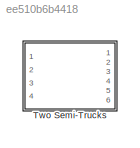
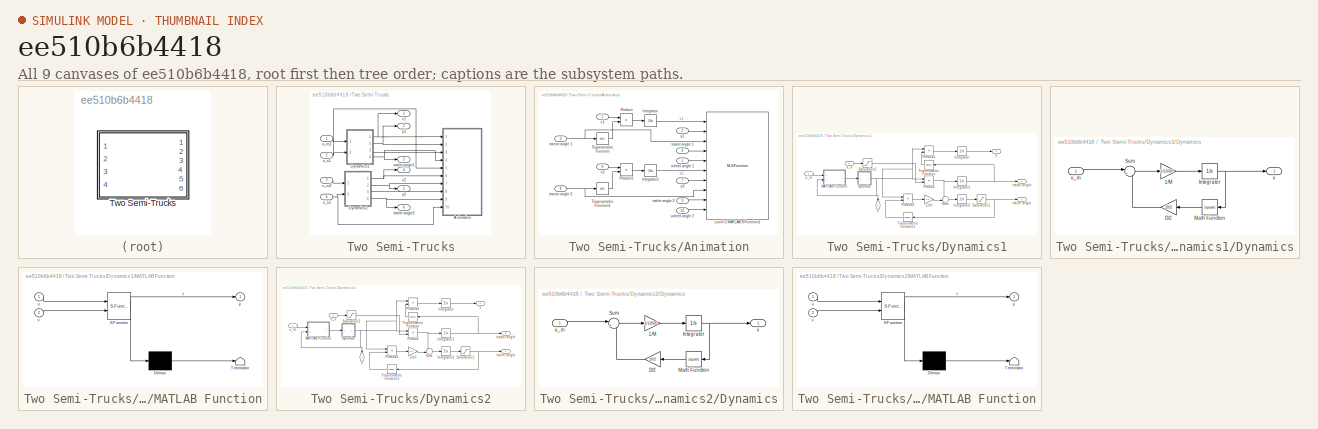
[diagram: thumbnail index - all 9 canvases of the model, root first then tree order]
MODEL slx_ee510b6b4418
KIND model
CONFIG AbsTol = auto
CONFIG EnableMultiTasking = off
CONFIG FixedStep = auto
CONFIG MaxStep = 0.01
CONFIG MinStep = auto
CONFIG RelTol = 1e-3
CONFIG SampleTimeConstraint = Unconstrained
CONFIG SolverName = VariableStepAuto
CONFIG StartTime = 0.0
CONFIG StopTime = 100
BLOCK [SubSystem] Two Semi-Trucks
  Ports = [4, 6]
BLOCK [SubSystem] Two Semi-Trucks/Animation
  Ports = [10]
BLOCK [Integrator] Two Semi-Trucks/Animation/Integrator
  Ports = [1, 1]
BLOCK [Integrator] Two Semi-Trucks/Animation/Integrator1
  Ports = [1, 1]
BLOCK [M-S-Function] Two Semi-Trucks/Animation/Level-2 MATLAB S-Function1
  FunctionName = semiTruckDoubleSFunction
  Ports = [10]
BLOCK [Product] Two Semi-Trucks/Animation/Product
  Ports = [2, 1]
BLOCK [Product] Two Semi-Trucks/Animation/Product1
  Ports = [2, 1]
BLOCK [Trigonometry] Two Semi-Trucks/Animation/Trigonometric Function
  Operator = cos
  Ports = [1, 1]
BLOCK [Trigonometry] Two Semi-Trucks/Animation/Trigonometric Function1
  Operator = cos
  Ports = [1, 1]
BLOCK [Inport] Two Semi-Trucks/Animation/tractor angle 1
  Port = 3
BLOCK [Inport] Two Semi-Trucks/Animation/tractor angle 2
  Port = 8
BLOCK [Inport] Two Semi-Trucks/Animation/trailer angle 1
  Port = 4
BLOCK [Inport] Two Semi-Trucks/Animation/trailer angle 2
  Port = 9
BLOCK [Inport] Two Semi-Trucks/Animation/v1
BLOCK [Inport] Two Semi-Trucks/Animation/v2
  Port = 6
BLOCK [Inport] Two Semi-Trucks/Animation/wheel angle 1
  Port = 5
BLOCK [Inport] Two Semi-Trucks/Animation/wheel angle 2
  Port = 10
BLOCK [Inport] Two Semi-Trucks/Animation/y1
  Port = 2
BLOCK [Inport] Two Semi-Trucks/Animation/y2
  Port = 7
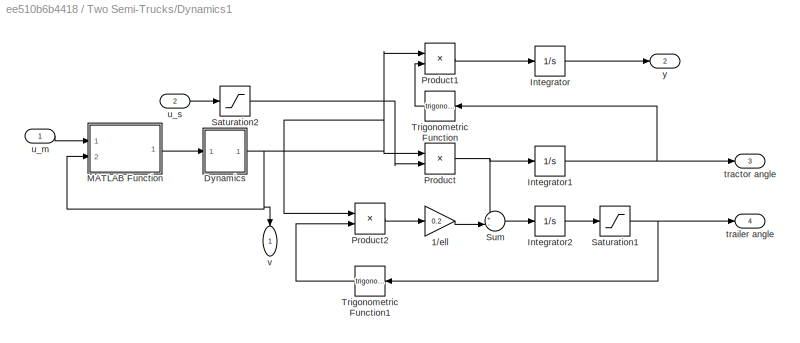
BLOCK [SubSystem] Two Semi-Trucks/Dynamics1
  ClipboardFcn = parameters_truck.m
  Ports = [2, 4]
BLOCK [Gain] Two Semi-Trucks/Dynamics1/1//ell
  Gain = 0.2
BLOCK [SubSystem] Two Semi-Trucks/Dynamics1/Dynamics
  ClipboardFcn = parameters_truck.m
  Ports = [1, 1]
BLOCK [Gain] Two Semi-Trucks/Dynamics1/Dynamics/1//M
  Gain = 1/12000
BLOCK [Gain] Two Semi-Trucks/Dynamics1/Dynamics/D//2
  Gain = 10/2
  NameLocation = top
BLOCK [Integrator] Two Semi-Trucks/Dynamics1/Dynamics/Integrator
  Ports = [1, 1]
BLOCK [Math] Two Semi-Trucks/Dynamics1/Dynamics/Math Function
  NameLocation = top
  Operator = square
  Ports = [1, 1]
BLOCK [Sum] Two Semi-Trucks/Dynamics1/Dynamics/Sum
  Inputs = |+-
  Ports = [2, 1]
BLOCK [Inport] Two Semi-Trucks/Dynamics1/Dynamics/u_m
BLOCK [Outport] Two Semi-Trucks/Dynamics1/Dynamics/v
BLOCK [Integrator] Two Semi-Trucks/Dynamics1/Integrator
  InitialCondition = 1.25
  Ports = [1, 1]
BLOCK [Integrator] Two Semi-Trucks/Dynamics1/Integrator1
  Ports = [1, 1]
BLOCK [Integrator] Two Semi-Trucks/Dynamics1/Integrator2
  Ports = [1, 1]
BLOCK [SubSystem] Two Semi-Trucks/Dynamics1/MATLAB Function
  ErrorFcn = Stateflow.Translate.translate
  PermitHierarchicalResolution = ExplicitOnly
  Ports = [2, 1]
  SFBlockType = MATLAB Function
  TreatAsAtomicUnit = on
BLOCK [Demux] Two Semi-Trucks/Dynamics1/MATLAB Function/ Demux 
  Outputs = 1
  Ports = [1, 1]
BLOCK [S-Function] Two Semi-Trucks/Dynamics1/MATLAB Function/ SFunction 
  EnableBusSupport = on
  FunctionName = sf_sfun
  PortCounts = [2 2]
  Ports = [2, 2]
  SFcnIsStateOwnerBlock = off
  SFunctionDeploymentMode = off
  Tag = Stateflow S-Function 1
BLOCK [Terminator] Two Semi-Trucks/Dynamics1/MATLAB Function/ Terminator 
BLOCK [Inport] Two Semi-Trucks/Dynamics1/MATLAB Function/u
BLOCK [Inport] Two Semi-Trucks/Dynamics1/MATLAB Function/v
  Port = 2
BLOCK [Outport] Two Semi-Trucks/Dynamics1/MATLAB Function/y
BLOCK [Product] Two Semi-Trucks/Dynamics1/Product
  Ports = [2, 1]
BLOCK [Product] Two Semi-Trucks/Dynamics1/Product1
  Ports = [2, 1]
BLOCK [Product] Two Semi-Trucks/Dynamics1/Product2
  Ports = [2, 1]
BLOCK [Saturate] Two Semi-Trucks/Dynamics1/Saturation1
  LowerLimit = -pi/2
  UpperLimit = pi/2
BLOCK [Saturate] Two Semi-Trucks/Dynamics1/Saturation2
  LowerLimit = -pi/4
  UpperLimit = pi/4
BLOCK [Sum] Two Semi-Trucks/Dynamics1/Sum
  Inputs = +-|
  Ports = [2, 1]
BLOCK [Trigonometry] Two Semi-Trucks/Dynamics1/Trigonometric Function
  NameLocation = top
  Ports = [1, 1]
BLOCK [Trigonometry] Two Semi-Trucks/Dynamics1/Trigonometric Function1
  NameLocation = top
  Ports = [1, 1]
BLOCK [Outport] Two Semi-Trucks/Dynamics1/tractor angle
  Port = 3
BLOCK [Outport] Two Semi-Trucks/Dynamics1/trailer angle
  Port = 4
BLOCK [Inport] Two Semi-Trucks/Dynamics1/u_m
BLOCK [Inport] Two Semi-Trucks/Dynamics1/u_s
  Port = 2
BLOCK [Outport] Two Semi-Trucks/Dynamics1/v
  NameLocation = left
BLOCK [Outport] Two Semi-Trucks/Dynamics1/y
  Port = 2
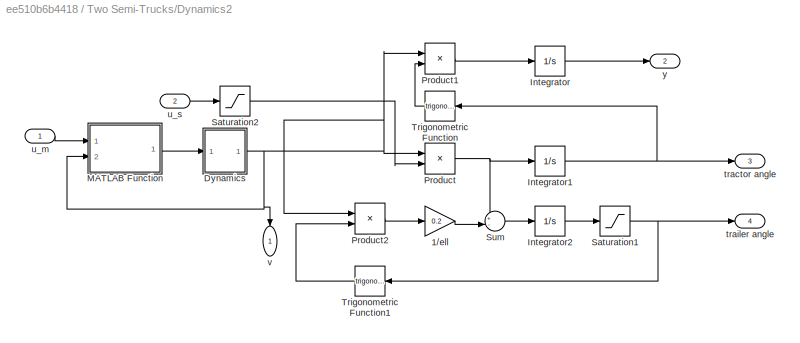
BLOCK [SubSystem] Two Semi-Trucks/Dynamics2
  ClipboardFcn = parameters_truck.m
  Ports = [2, 4]
BLOCK [Gain] Two Semi-Trucks/Dynamics2/1//ell
  Gain = 0.2
BLOCK [SubSystem] Two Semi-Trucks/Dynamics2/Dynamics
  ClipboardFcn = parameters_truck.m
  Ports = [1, 1]
BLOCK [Gain] Two Semi-Trucks/Dynamics2/Dynamics/1//M
  Gain = 1/12000
BLOCK [Gain] Two Semi-Trucks/Dynamics2/Dynamics/D//2
  Gain = 10/2
  NameLocation = top
BLOCK [Integrator] Two Semi-Trucks/Dynamics2/Dynamics/Integrator
  Ports = [1, 1]
BLOCK [Math] Two Semi-Trucks/Dynamics2/Dynamics/Math Function
  NameLocation = top
  Operator = square
  Ports = [1, 1]
BLOCK [Sum] Two Semi-Trucks/Dynamics2/Dynamics/Sum
  Inputs = |+-
  Ports = [2, 1]
BLOCK [Inport] Two Semi-Trucks/Dynamics2/Dynamics/u_m
BLOCK [Outport] Two Semi-Trucks/Dynamics2/Dynamics/v
BLOCK [Integrator] Two Semi-Trucks/Dynamics2/Integrator
  InitialCondition = -1.25
  Ports = [1, 1]
BLOCK [Integrator] Two Semi-Trucks/Dynamics2/Integrator1
  Ports = [1, 1]
BLOCK [Integrator] Two Semi-Trucks/Dynamics2/Integrator2
  Ports = [1, 1]
BLOCK [SubSystem] Two Semi-Trucks/Dynamics2/MATLAB Function
  ErrorFcn = Stateflow.Translate.translate
  PermitHierarchicalResolution = ExplicitOnly
  Ports = [2, 1]
  SFBlockType = MATLAB Function
  TreatAsAtomicUnit = on
BLOCK [Demux] Two Semi-Trucks/Dynamics2/MATLAB Function/ Demux 
  Outputs = 1
  Ports = [1, 1]
BLOCK [S-Function] Two Semi-Trucks/Dynamics2/MATLAB Function/ SFunction 
  EnableBusSupport = on
  FunctionName = sf_sfun
  PortCounts = [2 2]
  Ports = [2, 2]
  SFcnIsStateOwnerBlock = off
  SFunctionDeploymentMode = off
  Tag = Stateflow S-Function 2
BLOCK [Terminator] Two Semi-Trucks/Dynamics2/MATLAB Function/ Terminator 
BLOCK [Inport] Two Semi-Trucks/Dynamics2/MATLAB Function/u
BLOCK [Inport] Two Semi-Trucks/Dynamics2/MATLAB Function/v
  Port = 2
BLOCK [Outport] Two Semi-Trucks/Dynamics2/MATLAB Function/y
BLOCK [Product] Two Semi-Trucks/Dynamics2/Product
  Ports = [2, 1]
BLOCK [Product] Two Semi-Trucks/Dynamics2/Product1
  Ports = [2, 1]
BLOCK [Product] Two Semi-Trucks/Dynamics2/Product2
  Ports = [2, 1]
BLOCK [Saturate] Two Semi-Trucks/Dynamics2/Saturation1
  LowerLimit = -pi/2
  UpperLimit = pi/2
BLOCK [Saturate] Two Semi-Trucks/Dynamics2/Saturation2
  LowerLimit = -pi/4
  UpperLimit = pi/4
BLOCK [Sum] Two Semi-Trucks/Dynamics2/Sum
  Inputs = +-|
  Ports = [2, 1]
BLOCK [Trigonometry] Two Semi-Trucks/Dynamics2/Trigonometric Function
  NameLocation = top
  Ports = [1, 1]
BLOCK [Trigonometry] Two Semi-Trucks/Dynamics2/Trigonometric Function1
  NameLocation = top
  Ports = [1, 1]
BLOCK [Outport] Two Semi-Trucks/Dynamics2/tractor angle
  Port = 3
BLOCK [Outport] Two Semi-Trucks/Dynamics2/trailer angle
  Port = 4
BLOCK [Inport] Two Semi-Trucks/Dynamics2/u_m
BLOCK [Inport] Two Semi-Trucks/Dynamics2/u_s
  Port = 2
BLOCK [Outport] Two Semi-Trucks/Dynamics2/v
  NameLocation = left
BLOCK [Outport] Two Semi-Trucks/Dynamics2/y
  Port = 2
BLOCK [Outport] Two Semi-Trucks/trailer angle1
  Port = 3
BLOCK [Outport] Two Semi-Trucks/trailer angle2
  Port = 6
BLOCK [Inport] Two Semi-Trucks/u_m1
BLOCK [Inport] Two Semi-Trucks/u_m2
  Port = 3
BLOCK [Inport] Two Semi-Trucks/u_s1
  Port = 2
BLOCK [Inport] Two Semi-Trucks/u_s2
  Port = 4
BLOCK [Outport] Two Semi-Trucks/v1
BLOCK [Outport] Two Semi-Trucks/v2
  Port = 4
BLOCK [Outport] Two Semi-Trucks/y1
  Port = 2
BLOCK [Outport] Two Semi-Trucks/y2
  Port = 5
LINE Two Semi-Trucks/Animation/Integrator1:1 -> Two Semi-Trucks/Animation/Level-2 MATLAB S-Function1:6
LINE Two Semi-Trucks/Animation/Integrator:1 -> Two Semi-Trucks/Animation/Level-2 MATLAB S-Function1:1
LINE Two Semi-Trucks/Animation/Product1:1 -> Two Semi-Trucks/Animation/Integrator1:1
LINE Two Semi-Trucks/Animation/Product:1 -> Two Semi-Trucks/Animation/Integrator:1
LINE Two Semi-Trucks/Animation/Trigonometric Function1:1 -> Two Semi-Trucks/Animation/Product1:2
LINE Two Semi-Trucks/Animation/Trigonometric Function:1 -> Two Semi-Trucks/Animation/Product:2
NET Two Semi-Trucks/Animation/tractor angle 1:1 -> Two Semi-Trucks/Animation/Level-2 MATLAB S-Function1:3, Two Semi-Trucks/Animation/Trigonometric Function:1
NET Two Semi-Trucks/Animation/tractor angle 2:1 -> Two Semi-Trucks/Animation/Level-2 MATLAB S-Function1:8, Two Semi-Trucks/Animation/Trigonometric Function1:1
LINE Two Semi-Trucks/Animation/trailer angle 1:1 -> Two Semi-Trucks/Animation/Level-2 MATLAB S-Function1:4
LINE Two Semi-Trucks/Animation/trailer angle 2:1 -> Two Semi-Trucks/Animation/Level-2 MATLAB S-Function1:9
LINE Two Semi-Trucks/Animation/v1:1 -> Two Semi-Trucks/Animation/Product:1
LINE Two Semi-Trucks/Animation/v2:1 -> Two Semi-Trucks/Animation/Product1:1
LINE Two Semi-Trucks/Animation/wheel angle 1:1 -> Two Semi-Trucks/Animation/Level-2 MATLAB S-Function1:5
LINE Two Semi-Trucks/Animation/wheel angle 2:1 -> Two Semi-Trucks/Animation/Level-2 MATLAB S-Function1:10
LINE Two Semi-Trucks/Animation/y1:1 -> Two Semi-Trucks/Animation/Level-2 MATLAB S-Function1:2
LINE Two Semi-Trucks/Animation/y2:1 -> Two Semi-Trucks/Animation/Level-2 MATLAB S-Function1:7
LINE Two Semi-Trucks/Dynamics1/1//ell:1 -> Two Semi-Trucks/Dynamics1/Sum:2
LINE Two Semi-Trucks/Dynamics1/Dynamics/1//M:1 -> Two Semi-Trucks/Dynamics1/Dynamics/Integrator:1
LINE Two Semi-Trucks/Dynamics1/Dynamics/D//2:1 -> Two Semi-Trucks/Dynamics1/Dynamics/Sum:2
NET Two Semi-Trucks/Dynamics1/Dynamics/Integrator:1 -> Two Semi-Trucks/Dynamics1/Dynamics/Math Function:1, Two Semi-Trucks/Dynamics1/Dynamics/v:1
LINE Two Semi-Trucks/Dynamics1/Dynamics/Math Function:1 -> Two Semi-Trucks/Dynamics1/Dynamics/D//2:1
LINE Two Semi-Trucks/Dynamics1/Dynamics/Sum:1 -> Two Semi-Trucks/Dynamics1/Dynamics/1//M:1
LINE Two Semi-Trucks/Dynamics1/Dynamics/u_m:1 -> Two Semi-Trucks/Dynamics1/Dynamics/Sum:1
NET Two Semi-Trucks/Dynamics1/Dynamics:1 -> Two Semi-Trucks/Dynamics1/MATLAB Function:2, Two Semi-Trucks/Dynamics1/Product1:1, Two Semi-Trucks/Dynamics1/Product2:1, Two Semi-Trucks/Dynamics1/Product:1, Two Semi-Trucks/Dynamics1/v:1
NET Two Semi-Trucks/Dynamics1/Integrator1:1 -> Two Semi-Trucks/Dynamics1/Trigonometric Function:1, Two Semi-Trucks/Dynamics1/tractor angle:1
LINE Two Semi-Trucks/Dynamics1/Integrator2:1 -> Two Semi-Trucks/Dynamics1/Saturation1:1
LINE Two Semi-Trucks/Dynamics1/Integrator:1 -> Two Semi-Trucks/Dynamics1/y:1
LINE Two Semi-Trucks/Dynamics1/MATLAB Function:1 -> Two Semi-Trucks/Dynamics1/Dynamics:1
LINE Two Semi-Trucks/Dynamics1/Product1:1 -> Two Semi-Trucks/Dynamics1/Integrator:1
LINE Two Semi-Trucks/Dynamics1/Product2:1 -> Two Semi-Trucks/Dynamics1/1//ell:1
NET Two Semi-Trucks/Dynamics1/Product:1 -> Two Semi-Trucks/Dynamics1/Integrator1:1, Two Semi-Trucks/Dynamics1/Sum:1
NET Two Semi-Trucks/Dynamics1/Saturation1:1 -> Two Semi-Trucks/Dynamics1/Trigonometric Function1:1, Two Semi-Trucks/Dynamics1/trailer angle:1
LINE Two Semi-Trucks/Dynamics1/Saturation2:1 -> Two Semi-Trucks/Dynamics1/Product:2
LINE Two Semi-Trucks/Dynamics1/Sum:1 -> Two Semi-Trucks/Dynamics1/Integrator2:1
LINE Two Semi-Trucks/Dynamics1/Trigonometric Function1:1 -> Two Semi-Trucks/Dynamics1/Product2:2
LINE Two Semi-Trucks/Dynamics1/Trigonometric Function:1 -> Two Semi-Trucks/Dynamics1/Product1:2
LINE Two Semi-Trucks/Dynamics1/u_m:1 -> Two Semi-Trucks/Dynamics1/MATLAB Function:1
LINE Two Semi-Trucks/Dynamics1/u_s:1 -> Two Semi-Trucks/Dynamics1/Saturation2:1
NET Two Semi-Trucks/Dynamics1:1 -> Two Semi-Trucks/Animation:1, Two Semi-Trucks/v1:1
NET Two Semi-Trucks/Dynamics1:2 -> Two Semi-Trucks/Animation:2, Two Semi-Trucks/y1:1
LINE Two Semi-Trucks/Dynamics1:3 -> Two Semi-Trucks/Animation:3
NET Two Semi-Trucks/Dynamics1:4 -> Two Semi-Trucks/Animation:4, Two Semi-Trucks/trailer angle1:1
LINE Two Semi-Trucks/Dynamics2/1//ell:1 -> Two Semi-Trucks/Dynamics2/Sum:2
LINE Two Semi-Trucks/Dynamics2/Dynamics/1//M:1 -> Two Semi-Trucks/Dynamics2/Dynamics/Integrator:1
LINE Two Semi-Trucks/Dynamics2/Dynamics/D//2:1 -> Two Semi-Trucks/Dynamics2/Dynamics/Sum:2
NET Two Semi-Trucks/Dynamics2/Dynamics/Integrator:1 -> Two Semi-Trucks/Dynamics2/Dynamics/Math Function:1, Two Semi-Trucks/Dynamics2/Dynamics/v:1
LINE Two Semi-Trucks/Dynamics2/Dynamics/Math Function:1 -> Two Semi-Trucks/Dynamics2/Dynamics/D//2:1
LINE Two Semi-Trucks/Dynamics2/Dynamics/Sum:1 -> Two Semi-Trucks/Dynamics2/Dynamics/1//M:1
LINE Two Semi-Trucks/Dynamics2/Dynamics/u_m:1 -> Two Semi-Trucks/Dynamics2/Dynamics/Sum:1
NET Two Semi-Trucks/Dynamics2/Dynamics:1 -> Two Semi-Trucks/Dynamics2/MATLAB Function:2, Two Semi-Trucks/Dynamics2/Product1:1, Two Semi-Trucks/Dynamics2/Product2:1, Two Semi-Trucks/Dynamics2/Product:1, Two Semi-Trucks/Dynamics2/v:1
NET Two Semi-Trucks/Dynamics2/Integrator1:1 -> Two Semi-Trucks/Dynamics2/Trigonometric Function:1, Two Semi-Trucks/Dynamics2/tractor angle:1
LINE Two Semi-Trucks/Dynamics2/Integrator2:1 -> Two Semi-Trucks/Dynamics2/Saturation1:1
LINE Two Semi-Trucks/Dynamics2/Integrator:1 -> Two Semi-Trucks/Dynamics2/y:1
LINE Two Semi-Trucks/Dynamics2/MATLAB Function:1 -> Two Semi-Trucks/Dynamics2/Dynamics:1
LINE Two Semi-Trucks/Dynamics2/Product1:1 -> Two Semi-Trucks/Dynamics2/Integrator:1
LINE Two Semi-Trucks/Dynamics2/Product2:1 -> Two Semi-Trucks/Dynamics2/1//ell:1
NET Two Semi-Trucks/Dynamics2/Product:1 -> Two Semi-Trucks/Dynamics2/Integrator1:1, Two Semi-Trucks/Dynamics2/Sum:1
NET Two Semi-Trucks/Dynamics2/Saturation1:1 -> Two Semi-Trucks/Dynamics2/Trigonometric Function1:1, Two Semi-Trucks/Dynamics2/trailer angle:1
LINE Two Semi-Trucks/Dynamics2/Saturation2:1 -> Two Semi-Trucks/Dynamics2/Product:2
LINE Two Semi-Trucks/Dynamics2/Sum:1 -> Two Semi-Trucks/Dynamics2/Integrator2:1
LINE Two Semi-Trucks/Dynamics2/Trigonometric Function1:1 -> Two Semi-Trucks/Dynamics2/Product2:2
LINE Two Semi-Trucks/Dynamics2/Trigonometric Function:1 -> Two Semi-Trucks/Dynamics2/Product1:2
LINE Two Semi-Trucks/Dynamics2/u_m:1 -> Two Semi-Trucks/Dynamics2/MATLAB Function:1
LINE Two Semi-Trucks/Dynamics2/u_s:1 -> Two Semi-Trucks/Dynamics2/Saturation2:1
NET Two Semi-Trucks/Dynamics2:1 -> Two Semi-Trucks/Animation:6, Two Semi-Trucks/v2:1
NET Two Semi-Trucks/Dynamics2:2 -> Two Semi-Trucks/Animation:7, Two Semi-Trucks/y2:1
LINE Two Semi-Trucks/Dynamics2:3 -> Two Semi-Trucks/Animation:8
NET Two Semi-Trucks/Dynamics2:4 -> Two Semi-Trucks/Animation:9, Two Semi-Trucks/trailer angle2:1
LINE Two Semi-Trucks/u_m1:1 -> Two Semi-Trucks/Dynamics1:1
LINE Two Semi-Trucks/u_m2:1 -> Two Semi-Trucks/Dynamics2:1
NET Two Semi-Trucks/u_s1:1 -> Two Semi-Trucks/Animation:5, Two Semi-Trucks/Dynamics1:2
NET Two Semi-Trucks/u_s2:1 -> Two Semi-Trucks/Animation:10, Two Semi-Trucks/Dynamics2:2
note: NET lines group one-source signal fan-out (src -> all destinations, sorted); 1:1 wires keep LINE
CHART Two Semi-Trucks/Dynamics2/MATLAB Function states=1 transitions=1
  STATE_LABEL 'eML_blk_kernel()'
  STATE_LABEL 'SCRIPT:\nfunction y = saturation(u,v)\n    Pmax = 400000;\n    epsilon = 0.1;\n    \n    sat = Pmax/sqrt(v^2+epsilon);\n    y = max(min(u,sat),-sat);\n'
CHART Two Semi-Trucks/Dynamics1/MATLAB Function states=1 transitions=1
  STATE_LABEL 'eML_blk_kernel()'
  STATE_LABEL 'SCRIPT:\nfunction y = saturation(u,v)\n    Pmax = 400000;\n    epsilon = 0.1;\n    \n    sat = Pmax/sqrt(v^2+epsilon);\n    y = max(min(u,sat),-sat);\n'
CHART  states=0 transitions=0
CHART  states=0 transitions=0
